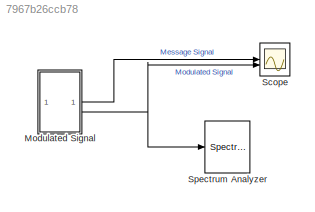
MODEL slx_7967b26ccb78
KIND model
CONFIG AbsTol = auto
CONFIG EnableMultiTasking = off
CONFIG FixedStep = auto
CONFIG MaxStep = auto
CONFIG MinStep = auto
CONFIG RelTol = 1e-3
CONFIG SampleTimeConstraint = Unconstrained
CONFIG SolverName = VariableStepAuto
CONFIG StartTime = 0.0
CONFIG StopTime = 0.02
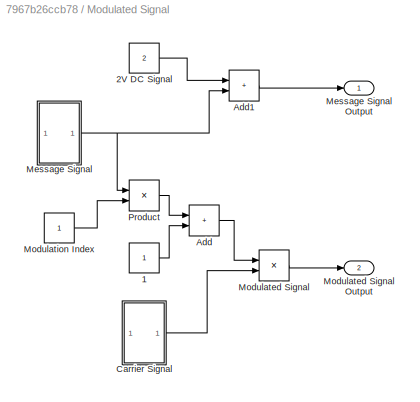
BLOCK [SubSystem] Modulated Signal
BLOCK [Outport] Modulated Signal/ Modulated Signal Output
  Port = 2
BLOCK [Constant] Modulated Signal/1
BLOCK [Constant] Modulated Signal/2V DC Signal
  Value = 2
BLOCK [Sum] Modulated Signal/Add
  IconShape = rectangular
BLOCK [Sum] Modulated Signal/Add1
  IconShape = rectangular
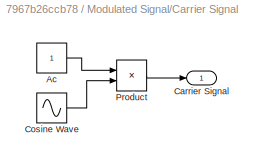
BLOCK [SubSystem] Modulated Signal/Carrier Signal
BLOCK [Constant] Modulated Signal/Carrier Signal/Ac
BLOCK [Outport] Modulated Signal/Carrier Signal/Carrier Signal
BLOCK [Sin] Modulated Signal/Carrier Signal/Cosine Wave
  Frequency = 125663.706137
  Phase = -pi/2
  SampleTime = 0.000002
BLOCK [Product] Modulated Signal/Carrier Signal/Product
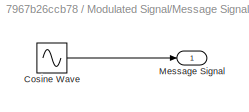
BLOCK [SubSystem] Modulated Signal/Message Signal
BLOCK [Outport] Modulated Signal/Message Signal Output
BLOCK [Sin] Modulated Signal/Message Signal/Cosine Wave
  Frequency = 12566.370614
  Phase = -pi/2
  SampleTime = 0.000002
BLOCK [Outport] Modulated Signal/Message Signal/Message Signal
BLOCK [Product] Modulated Signal/Modulated Signal
BLOCK [Constant] Modulated Signal/Modulation Index
BLOCK [Product] Modulated Signal/Product
BLOCK [Scope] Scope
  Floating = off
  NumInputPorts = 2
  ScopeSpecificationString = Simulink.scopes.TimeScopeBlockCfg('CurrentConfiguration', extmgr.ConfigurationSet(extmgr.Configuration('Core','General UI',true),extmgr.Configuration('Core','Source UI',true),extmgr.Configuration('Sources','WiredSimulink',true),extmgr.Configuration('Visuals','Time Domain',true,'SerializedDisplays',{struct('MinYLimReal','-4.50691','MaxYLimReal','5.39772','YLabelReal','','MinYLimMag','0.00000','MaxY...<+1606ch>
BLOCK [SpectrumAnalyzer] Spectrum Analyzer
  ScopeSpecificationString = spbscopes.SpectrumAnalyzerBlockCfg('CurrentConfiguration', extmgr.ConfigurationSet(extmgr.Configuration('Core','General UI',true),extmgr.Configuration('Core','Source UI',true),extmgr.Configuration('Sources','WiredSimulink',true),extmgr.Configuration('Visuals','Spectrum',true,'AxesProperties',struct('Color',{[0 0 0],[0 0 0]},'XColor',{[0.686274509803922 0.686274509803922 0.686274509803922],[0.68627...<+2636ch>
LINE Modulated Signal/1:1 -> Modulated Signal/Add:2
LINE Modulated Signal/2V DC Signal:1 -> Modulated Signal/Add1:1
LINE Modulated Signal/Add1:1 -> Modulated Signal/Message Signal Output:1
LINE Modulated Signal/Add:1 -> Modulated Signal/Modulated Signal:1
LINE Modulated Signal/Carrier Signal/Ac:1 -> Modulated Signal/Carrier Signal/Product:1
LINE Modulated Signal/Carrier Signal/Cosine Wave:1 -> Modulated Signal/Carrier Signal/Product:2
LINE Modulated Signal/Carrier Signal/Product:1 -> Modulated Signal/Carrier Signal/Carrier Signal:1
LINE Modulated Signal/Carrier Signal:1 -> Modulated Signal/Modulated Signal:2
LINE Modulated Signal/Message Signal/Cosine Wave:1 -> Modulated Signal/Message Signal/Message Signal:1
NET Modulated Signal/Message Signal:1 -> Modulated Signal/Add1:2, Modulated Signal/Product:1
LINE Modulated Signal/Modulated Signal:1 -> Modulated Signal/ Modulated Signal Output:1
LINE Modulated Signal/Modulation Index:1 -> Modulated Signal/Product:2
LINE Modulated Signal/Product:1 -> Modulated Signal/Add:1
LINE Modulated Signal:1 -> Scope:1
NET Modulated Signal:2 -> Scope:2, Spectrum Analyzer:1
note: NET lines group one-source signal fan-out (src -> all destinations, sorted); 1:1 wires keep LINE
